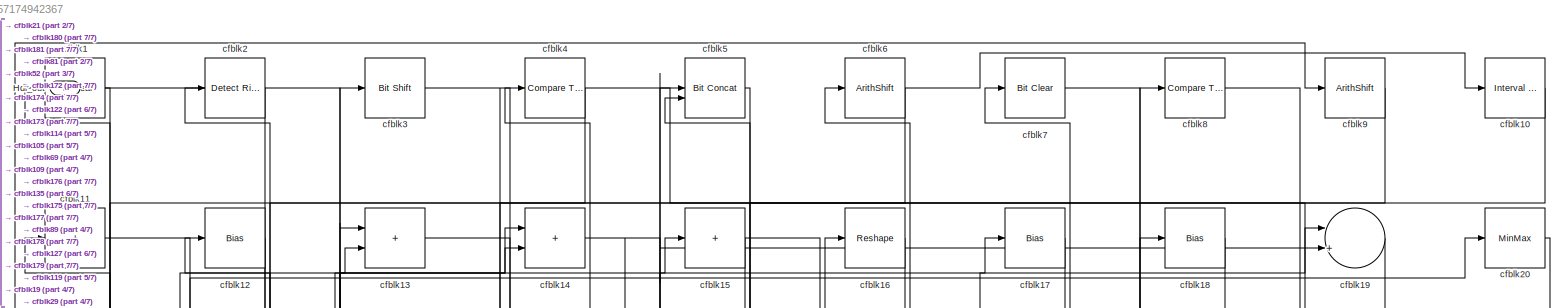
[diagram: root canvas - part 1/7, full width, top band]
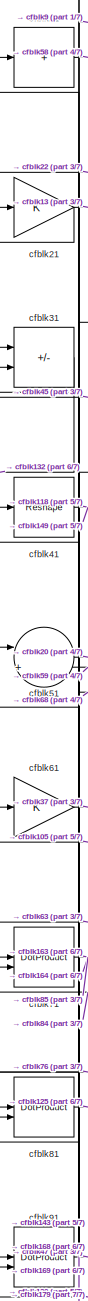
[diagram: root canvas - part 2/7, top left region]
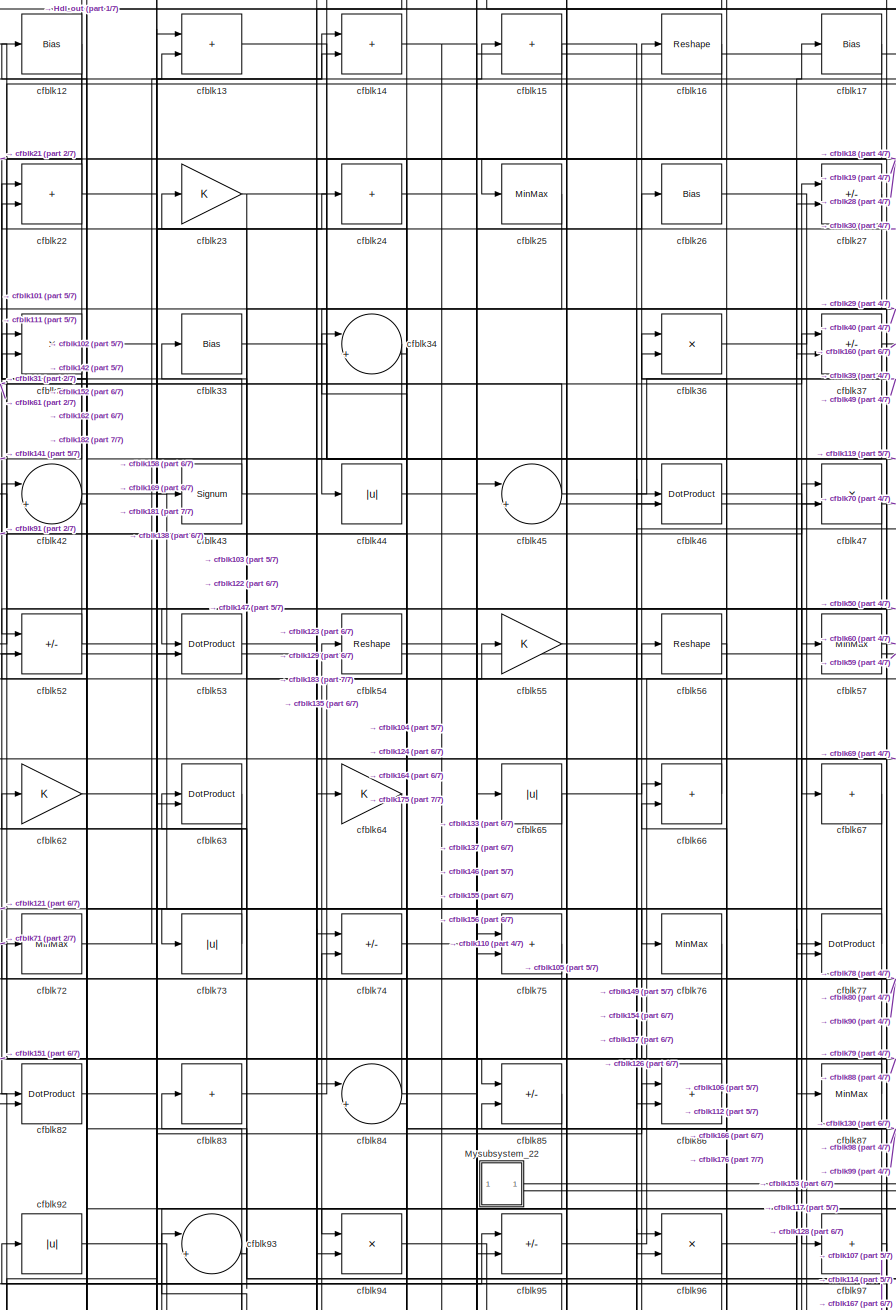
[diagram: root canvas - part 3/7, top center region]
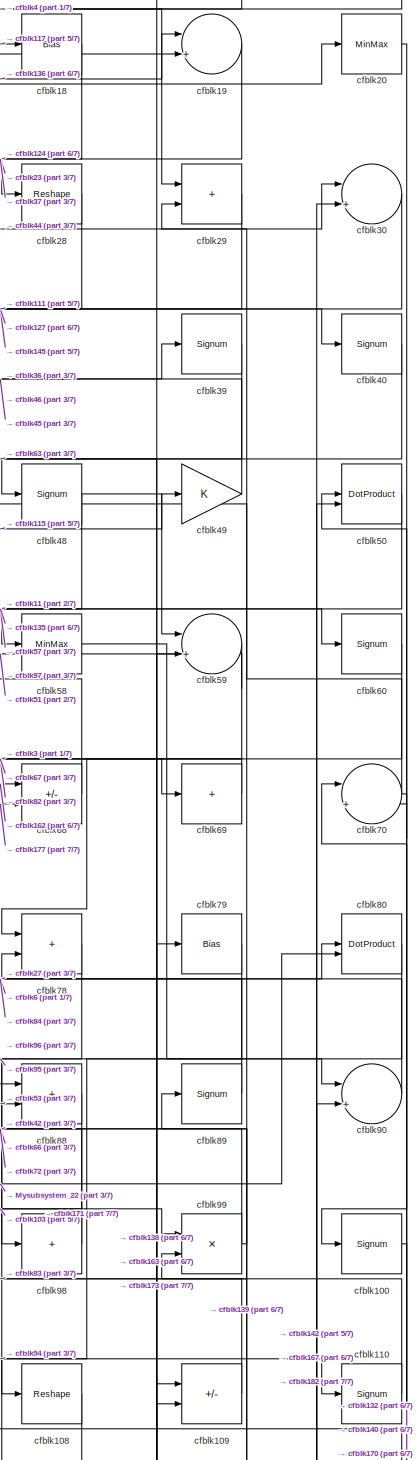
[diagram: root canvas - part 4/7, top right region]
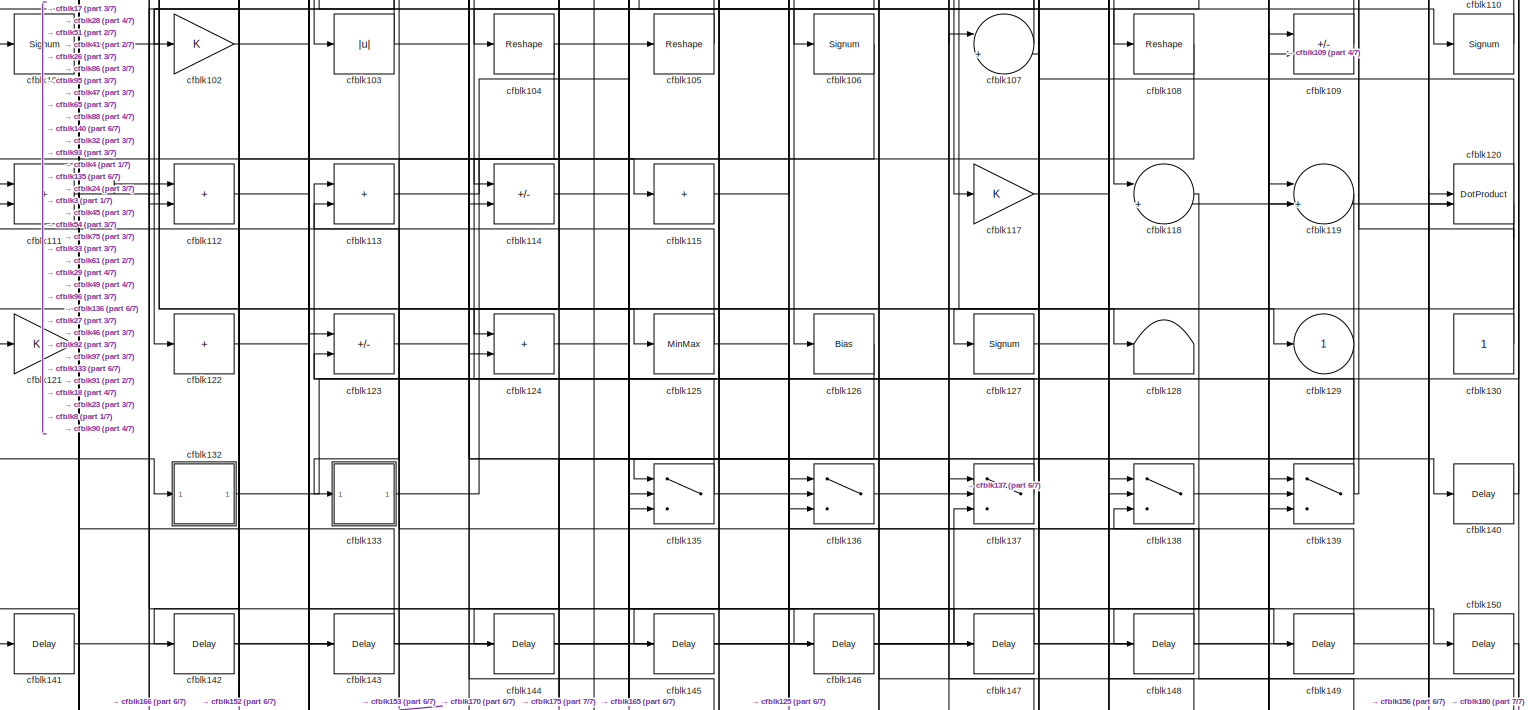
[diagram: root canvas - part 5/7, full width, middle band]
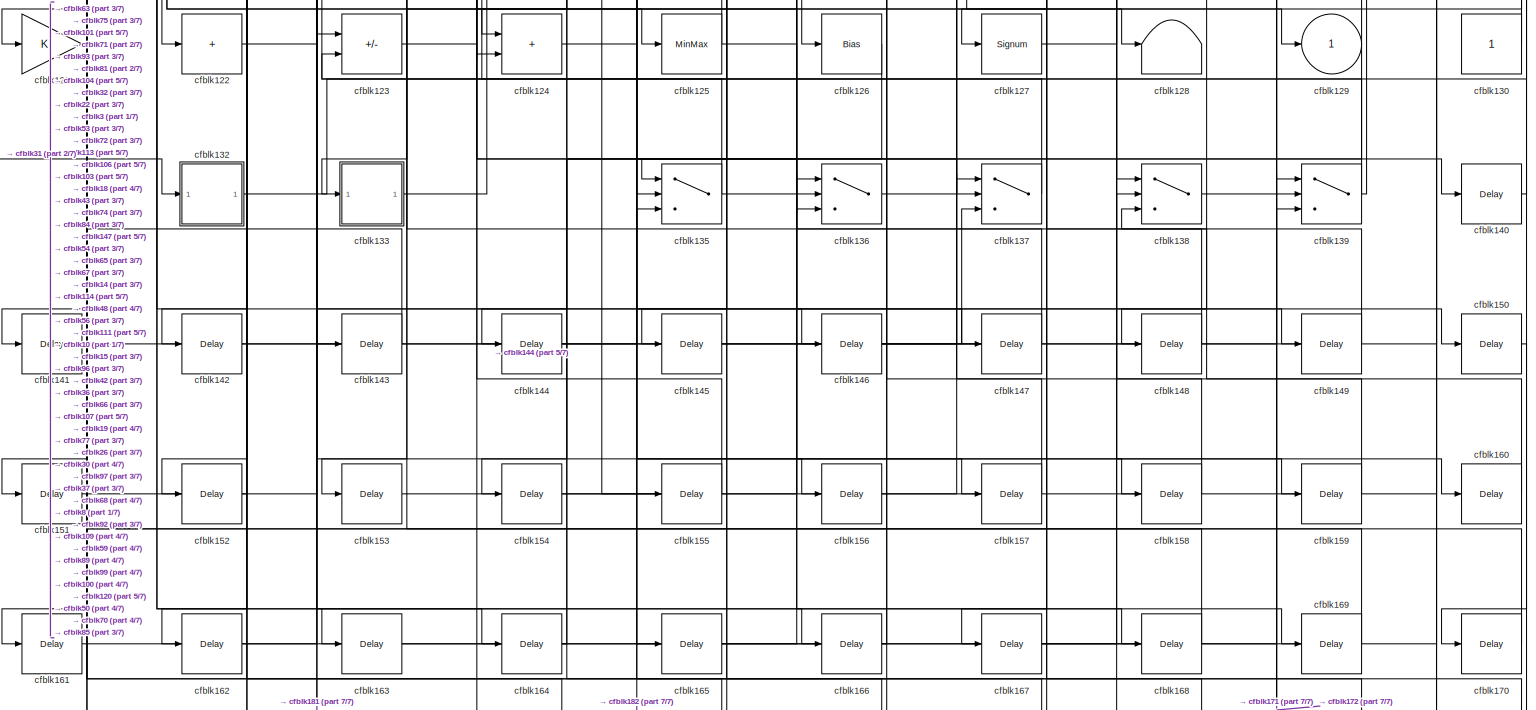
[diagram: root canvas - part 6/7, full width, bottom band]
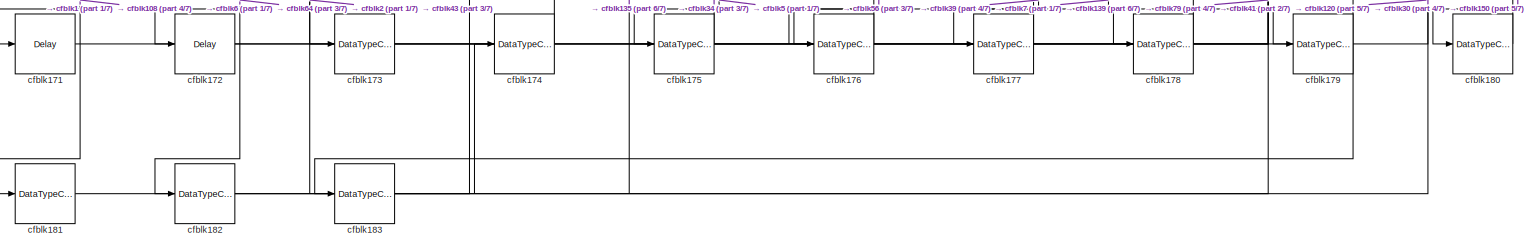
[diagram: root canvas - part 7/7, full width, bottom band]
MODEL slx_257174942367
KIND model
CONFIG AbsTol = auto
CONFIG EnableMultiTasking = off
CONFIG FixedStep = auto
CONFIG MaxStep = auto
CONFIG MinStep = auto
CONFIG RelTol = 1e-3
CONFIG SampleTimeConstraint = Unconstrained
CONFIG SolverName = VariableStepAuto
CONFIG StartTime = 0.0
CONFIG StopTime = 10.0
BLOCK [Outport] Hdl_out
  OutDataTypeStr = uint8
  Port = 2
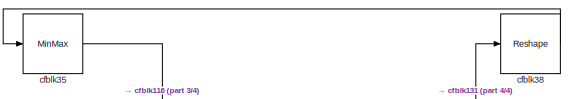
[diagram: Mysubsystem_22 - part 1/4, top center region]
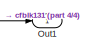
[diagram: Mysubsystem_22 - part 2/4, middle right region]
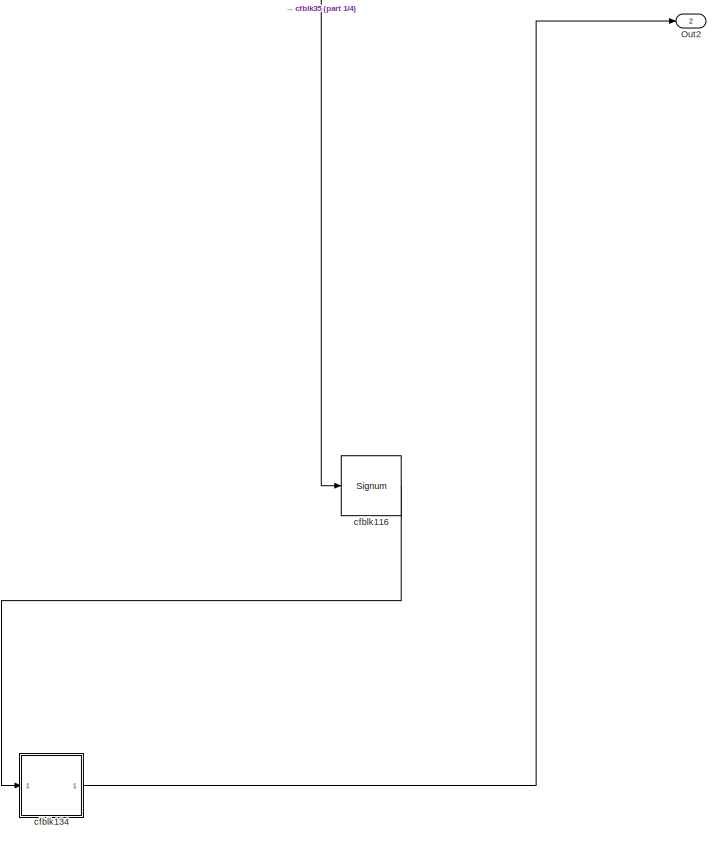
[diagram: Mysubsystem_22 - part 3/4, bottom center region]
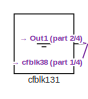
[diagram: Mysubsystem_22 - part 4/4, bottom left region]
BLOCK [SubSystem] Mysubsystem_22
  RTWFcnName = Mysubsystem_22
  RTWFcnNameOpts = User specified
  RTWFileNameOpts = Use function name
  RTWSystemCode = Reusable function
  TreatAsAtomicUnit = on
BLOCK [Outport] Mysubsystem_22/Out1
BLOCK [Outport] Mysubsystem_22/Out2
  Port = 2
BLOCK [Signum] Mysubsystem_22/cfblk116
BLOCK [Ground] Mysubsystem_22/cfblk131
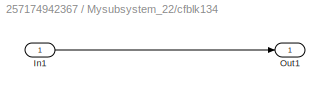
BLOCK [SubSystem] Mysubsystem_22/cfblk134
  LibrarySourceBlock = hdlsllib/Ports &\nSubsystems/Subsystem
BLOCK [Inport] Mysubsystem_22/cfblk134/In1
BLOCK [Outport] Mysubsystem_22/cfblk134/Out1
BLOCK [MinMax] Mysubsystem_22/cfblk35
BLOCK [Reshape] Mysubsystem_22/cfblk38
BLOCK [Reference] cfblk1  REF=simulink/Logic and Bit
Operations/Bit Clear
  LibrarySourceBlock = hdlsllib/Logic and Bit\nOperations/Bit Clear
  SourceBlock = simulink/Logic and Bit\nOperations/Bit Clear
  SourceType = Bit Clear
BLOCK [Reference] cfblk10  REF=hdlsllib/Logic and Bit
Operations/Interval Test
  SourceBlock = hdlsllib/Logic and Bit\nOperations/Interval Test
  SourceType = Interval Test
BLOCK [Signum] cfblk100
BLOCK [Signum] cfblk101
BLOCK [Gain] cfblk102
  OutDataTypeStr = uint8
BLOCK [Abs] cfblk103
  OutDataTypeStr = uint8
  SaturateOnIntegerOverflow = off
BLOCK [Reshape] cfblk104
BLOCK [Reshape] cfblk105
BLOCK [Signum] cfblk106
BLOCK [Sum] cfblk107
  Inputs = |++
  OutDataTypeStr = uint8
BLOCK [Reshape] cfblk108
BLOCK [Sum] cfblk109
  IconShape = rectangular
  Inputs = +-
  OutDataTypeStr = uint8
BLOCK [Sum] cfblk11
  IconShape = rectangular
  Inputs = +
  OutDataTypeStr = uint8
BLOCK [Signum] cfblk110
BLOCK [Sum] cfblk111
  IconShape = rectangular
  OutDataTypeStr = uint8
BLOCK [Sum] cfblk112
  IconShape = rectangular
  OutDataTypeStr = uint8
BLOCK [Sum] cfblk113
  IconShape = rectangular
  OutDataTypeStr = uint8
BLOCK [Sum] cfblk114
  IconShape = rectangular
  Inputs = +-
  OutDataTypeStr = uint8
BLOCK [Sum] cfblk115
  IconShape = rectangular
  Inputs = +
  OutDataTypeStr = uint8
BLOCK [Gain] cfblk117
  OutDataTypeStr = uint8
BLOCK [Sum] cfblk118
  Inputs = |++
  OutDataTypeStr = uint8
BLOCK [Sum] cfblk119
  Inputs = |++
  OutDataTypeStr = uint8
BLOCK [Bias] cfblk12
  Bias = 0.0
  SaturateOnIntegerOverflow = off
BLOCK [DotProduct] cfblk120
  OutDataTypeStr = uint8
BLOCK [Gain] cfblk121
  OutDataTypeStr = uint8
BLOCK [Sum] cfblk122
  IconShape = rectangular
  Inputs = +
  OutDataTypeStr = uint8
BLOCK [Sum] cfblk123
  IconShape = rectangular
  Inputs = +-
  OutDataTypeStr = uint8
BLOCK [Sum] cfblk124
  IconShape = rectangular
  OutDataTypeStr = uint8
BLOCK [MinMax] cfblk125
  OutDataTypeStr = uint8
BLOCK [Bias] cfblk126
  Bias = 0.0
  SaturateOnIntegerOverflow = off
BLOCK [Signum] cfblk127
BLOCK [Terminator] cfblk128
BLOCK [Outport] cfblk129
  OutDataTypeStr = uint8
  VectorParamsAs1DForOutWhenUnconnected = off
BLOCK [Sum] cfblk13
  IconShape = rectangular
  OutDataTypeStr = uint8
BLOCK [Constant] cfblk130
  OutDataTypeStr = uint8
  SampleTime = -1
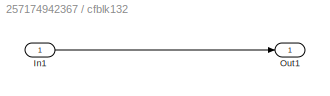
BLOCK [SubSystem] cfblk132
  LibrarySourceBlock = hdlsllib/Ports &\nSubsystems/Subsystem
BLOCK [Inport] cfblk132/In1
BLOCK [Outport] cfblk132/Out1
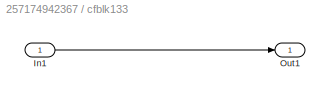
BLOCK [SubSystem] cfblk133
  LibrarySourceBlock = hdlsllib/Ports &\nSubsystems/Subsystem
BLOCK [Inport] cfblk133/In1
BLOCK [Outport] cfblk133/Out1
BLOCK [Switch] cfblk135
  InputSameDT = off
  OutDataTypeStr = uint8
  SaturateOnIntegerOverflow = off
BLOCK [Switch] cfblk136
  InputSameDT = off
  OutDataTypeStr = uint8
  SaturateOnIntegerOverflow = off
BLOCK [Switch] cfblk137
  InputSameDT = off
  OutDataTypeStr = uint8
  SaturateOnIntegerOverflow = off
BLOCK [Switch] cfblk138
  InputSameDT = off
  OutDataTypeStr = uint8
  SaturateOnIntegerOverflow = off
BLOCK [Switch] cfblk139
  InputSameDT = off
  OutDataTypeStr = uint8
  SaturateOnIntegerOverflow = off
BLOCK [Sum] cfblk14
  IconShape = rectangular
  OutDataTypeStr = uint8
BLOCK [Delay] cfblk140
  InputPortMap = u0
  SampleTime = 1
BLOCK [Delay] cfblk141
  InputPortMap = u0
  SampleTime = 1
BLOCK [Delay] cfblk142
  InputPortMap = u0
  SampleTime = 1
BLOCK [Delay] cfblk143
  InputPortMap = u0
  SampleTime = 1
BLOCK [Delay] cfblk144
  InputPortMap = u0
  SampleTime = 1
BLOCK [Delay] cfblk145
  InputPortMap = u0
  SampleTime = 1
BLOCK [Delay] cfblk146
  InputPortMap = u0
  SampleTime = 1
BLOCK [Delay] cfblk147
  InputPortMap = u0
  SampleTime = 1
BLOCK [Delay] cfblk148
  InputPortMap = u0
  SampleTime = 1
BLOCK [Delay] cfblk149
  InputPortMap = u0
  SampleTime = 1
BLOCK [Sum] cfblk15
  IconShape = rectangular
  Inputs = +
  OutDataTypeStr = uint8
BLOCK [Delay] cfblk150
  InputPortMap = u0
  SampleTime = 1
BLOCK [Delay] cfblk151
  InputPortMap = u0
  SampleTime = 1
BLOCK [Delay] cfblk152
  InputPortMap = u0
  SampleTime = 1
BLOCK [Delay] cfblk153
  InputPortMap = u0
  SampleTime = 1
BLOCK [Delay] cfblk154
  InputPortMap = u0
  SampleTime = 1
BLOCK [Delay] cfblk155
  InputPortMap = u0
  SampleTime = 1
BLOCK [Delay] cfblk156
  InputPortMap = u0
  SampleTime = 1
BLOCK [Delay] cfblk157
  InputPortMap = u0
  SampleTime = 1
BLOCK [Delay] cfblk158
  InputPortMap = u0
  SampleTime = 1
BLOCK [Delay] cfblk159
  InputPortMap = u0
  SampleTime = 1
BLOCK [Reshape] cfblk16
BLOCK [Delay] cfblk160
  InputPortMap = u0
  SampleTime = 1
BLOCK [Delay] cfblk161
  InputPortMap = u0
  SampleTime = 1
BLOCK [Delay] cfblk162
  InputPortMap = u0
  SampleTime = 1
BLOCK [Delay] cfblk163
  InputPortMap = u0
  SampleTime = 1
BLOCK [Delay] cfblk164
  InputPortMap = u0
  SampleTime = 1
BLOCK [Delay] cfblk165
  InputPortMap = u0
  SampleTime = 1
BLOCK [Delay] cfblk166
  InputPortMap = u0
  SampleTime = 1
BLOCK [Delay] cfblk167
  InputPortMap = u0
  SampleTime = 1
BLOCK [Delay] cfblk168
  InputPortMap = u0
  SampleTime = 1
BLOCK [Delay] cfblk169
  InputPortMap = u0
  SampleTime = 1
BLOCK [Bias] cfblk17
  Bias = 0.0
  SaturateOnIntegerOverflow = off
BLOCK [Delay] cfblk170
  InputPortMap = u0
  SampleTime = 1
BLOCK [Delay] cfblk171
  InputPortMap = u0
  SampleTime = 1
BLOCK [Delay] cfblk172
  InputPortMap = u0
  SampleTime = 1
BLOCK [DataTypeConversion] cfblk173
  OutDataTypeStr = uint8
  RndMeth = Floor
  SaturateOnIntegerOverflow = off
BLOCK [DataTypeConversion] cfblk174
  OutDataTypeStr = uint8
  RndMeth = Floor
  SaturateOnIntegerOverflow = off
BLOCK [DataTypeConversion] cfblk175
  OutDataTypeStr = uint8
  RndMeth = Floor
  SaturateOnIntegerOverflow = off
BLOCK [DataTypeConversion] cfblk176
  OutDataTypeStr = uint8
  RndMeth = Floor
  SaturateOnIntegerOverflow = off
BLOCK [DataTypeConversion] cfblk177
  OutDataTypeStr = uint8
  RndMeth = Floor
  SaturateOnIntegerOverflow = off
BLOCK [DataTypeConversion] cfblk178
  OutDataTypeStr = uint8
  RndMeth = Floor
  SaturateOnIntegerOverflow = off
BLOCK [DataTypeConversion] cfblk179
  OutDataTypeStr = uint8
  RndMeth = Floor
  SaturateOnIntegerOverflow = off
BLOCK [Bias] cfblk18
  Bias = 0.0
  SaturateOnIntegerOverflow = off
BLOCK [DataTypeConversion] cfblk180
  OutDataTypeStr = uint8
  RndMeth = Floor
  SaturateOnIntegerOverflow = off
BLOCK [DataTypeConversion] cfblk181
  OutDataTypeStr = uint8
  RndMeth = Floor
  SaturateOnIntegerOverflow = off
BLOCK [DataTypeConversion] cfblk182
  OutDataTypeStr = uint8
  RndMeth = Floor
  SaturateOnIntegerOverflow = off
BLOCK [DataTypeConversion] cfblk183
  OutDataTypeStr = uint8
  RndMeth = Floor
  SaturateOnIntegerOverflow = off
BLOCK [Sum] cfblk19
  Inputs = |++
  OutDataTypeStr = uint8
BLOCK [Reference] cfblk2  REF=hdlsllib/Logic and Bit
Operations/Detect Rise
Nonnegative
  SourceBlock = hdlsllib/Logic and Bit\nOperations/Detect Rise\nNonnegative
  SourceType = Detect Rise Nonnegative
BLOCK [MinMax] cfblk20
  OutDataTypeStr = uint8
BLOCK [Gain] cfblk21
  OutDataTypeStr = uint8
BLOCK [Sum] cfblk22
  IconShape = rectangular
  OutDataTypeStr = uint8
BLOCK [Gain] cfblk23
  OutDataTypeStr = uint8
BLOCK [Sum] cfblk24
  IconShape = rectangular
  Inputs = +
  OutDataTypeStr = uint8
BLOCK [MinMax] cfblk25
  OutDataTypeStr = uint8
BLOCK [Bias] cfblk26
  Bias = 0.0
  SaturateOnIntegerOverflow = off
BLOCK [Sum] cfblk27
  IconShape = rectangular
  Inputs = +-
  OutDataTypeStr = uint8
BLOCK [Reshape] cfblk28
BLOCK [Sum] cfblk29
  IconShape = rectangular
  OutDataTypeStr = uint8
BLOCK [Reference] cfblk3  REF=hdlsllib/Logic and Bit
Operations/Bit Shift
  SourceBlock = hdlsllib/Logic and Bit\nOperations/Bit Shift
  SourceType = Bit Shift
BLOCK [Sum] cfblk30
  Inputs = |++
  OutDataTypeStr = uint8
BLOCK [Sum] cfblk31
  IconShape = rectangular
  Inputs = +-
  OutDataTypeStr = uint8
BLOCK [Product] cfblk32
  Inputs = */
  OutDataTypeStr = uint8
  RndMeth = Zero
  SaturateOnIntegerOverflow = on
BLOCK [Bias] cfblk33
  Bias = 0.0
  SaturateOnIntegerOverflow = off
BLOCK [Sum] cfblk34
  Inputs = |++
  OutDataTypeStr = uint8
BLOCK [Product] cfblk36
  Inputs = */
  OutDataTypeStr = uint8
  RndMeth = Zero
  SaturateOnIntegerOverflow = on
BLOCK [Sum] cfblk37
  IconShape = rectangular
  Inputs = +-
  OutDataTypeStr = uint8
BLOCK [Signum] cfblk39
BLOCK [Reference] cfblk4  REF=hdlsllib/Logic and Bit
Operations/Compare
To Zero
  SourceBlock = hdlsllib/Logic and Bit\nOperations/Compare\nTo Zero
  SourceType = Compare To Zero
BLOCK [Signum] cfblk40
BLOCK [Reshape] cfblk41
BLOCK [Sum] cfblk42
  Inputs = |++
  OutDataTypeStr = uint8
BLOCK [Signum] cfblk43
BLOCK [Abs] cfblk44
  OutDataTypeStr = uint8
  SaturateOnIntegerOverflow = off
BLOCK [Sum] cfblk45
  Inputs = |++
  OutDataTypeStr = uint8
BLOCK [DotProduct] cfblk46
  OutDataTypeStr = uint8
BLOCK [Product] cfblk47
  Inputs = */
  OutDataTypeStr = uint8
  RndMeth = Zero
  SaturateOnIntegerOverflow = on
BLOCK [Signum] cfblk48
BLOCK [Gain] cfblk49
  OutDataTypeStr = uint8
BLOCK [Reference] cfblk5  REF=hdlsllib/Logic and Bit
Operations/Bit Concat
  SourceBlock = hdlsllib/Logic and Bit\nOperations/Bit Concat
  SourceType = Bit Concat
BLOCK [DotProduct] cfblk50
  OutDataTypeStr = uint8
BLOCK [Sum] cfblk51
  Inputs = |++
  OutDataTypeStr = uint8
BLOCK [Sum] cfblk52
  IconShape = rectangular
  Inputs = +-
  OutDataTypeStr = uint8
BLOCK [DotProduct] cfblk53
  OutDataTypeStr = uint8
BLOCK [Reshape] cfblk54
BLOCK [Gain] cfblk55
  OutDataTypeStr = uint8
BLOCK [Reshape] cfblk56
BLOCK [MinMax] cfblk57
  OutDataTypeStr = uint8
BLOCK [MinMax] cfblk58
  OutDataTypeStr = uint8
BLOCK [Sum] cfblk59
  Inputs = |++
  OutDataTypeStr = uint8
BLOCK [ArithShift] cfblk6
  BitShiftNumber = 8
  InputPortMap = u0
BLOCK [Signum] cfblk60
BLOCK [Gain] cfblk61
  OutDataTypeStr = uint8
BLOCK [Gain] cfblk62
  OutDataTypeStr = uint8
BLOCK [DotProduct] cfblk63
  OutDataTypeStr = uint8
BLOCK [Gain] cfblk64
  OutDataTypeStr = uint8
BLOCK [Abs] cfblk65
  OutDataTypeStr = uint8
  SaturateOnIntegerOverflow = off
BLOCK [Sum] cfblk66
  IconShape = rectangular
  OutDataTypeStr = uint8
BLOCK [Sum] cfblk67
  IconShape = rectangular
  Inputs = +
  OutDataTypeStr = uint8
BLOCK [Sum] cfblk68
  IconShape = rectangular
  Inputs = +-
  OutDataTypeStr = uint8
BLOCK [Sum] cfblk69
  IconShape = rectangular
  Inputs = +
  OutDataTypeStr = uint8
BLOCK [Reference] cfblk7  REF=simulink/Logic and Bit
Operations/Bit Clear
  LibrarySourceBlock = hdlsllib/Logic and Bit\nOperations/Bit Clear
  SourceBlock = simulink/Logic and Bit\nOperations/Bit Clear
  SourceType = Bit Clear
BLOCK [Sum] cfblk70
  Inputs = |++
  OutDataTypeStr = uint8
BLOCK [DotProduct] cfblk71
  OutDataTypeStr = uint8
BLOCK [MinMax] cfblk72
  OutDataTypeStr = uint8
BLOCK [Abs] cfblk73
  OutDataTypeStr = uint8
  SaturateOnIntegerOverflow = off
BLOCK [Sum] cfblk74
  IconShape = rectangular
  Inputs = +-
  OutDataTypeStr = uint8
BLOCK [Sum] cfblk75
  IconShape = rectangular
  OutDataTypeStr = uint8
BLOCK [MinMax] cfblk76
  OutDataTypeStr = uint8
BLOCK [DotProduct] cfblk77
  OutDataTypeStr = uint8
BLOCK [Sum] cfblk78
  IconShape = rectangular
  OutDataTypeStr = uint8
BLOCK [Bias] cfblk79
  Bias = 0.0
  SaturateOnIntegerOverflow = off
BLOCK [Reference] cfblk8  REF=hdlsllib/Logic and Bit
Operations/Compare
To Constant
  SourceBlock = hdlsllib/Logic and Bit\nOperations/Compare\nTo Constant
  SourceType = Compare To Constant
BLOCK [DotProduct] cfblk80
  OutDataTypeStr = uint8
BLOCK [DotProduct] cfblk81
  OutDataTypeStr = uint8
BLOCK [DotProduct] cfblk82
  OutDataTypeStr = uint8
BLOCK [Sum] cfblk83
  IconShape = rectangular
  Inputs = +
  OutDataTypeStr = uint8
BLOCK [Sum] cfblk84
  Inputs = |++
  OutDataTypeStr = uint8
BLOCK [Sum] cfblk85
  IconShape = rectangular
  Inputs = +-
  OutDataTypeStr = uint8
BLOCK [Sum] cfblk86
  IconShape = rectangular
  OutDataTypeStr = uint8
BLOCK [MinMax] cfblk87
  OutDataTypeStr = uint8
BLOCK [Sum] cfblk88
  IconShape = rectangular
  OutDataTypeStr = uint8
BLOCK [Signum] cfblk89
BLOCK [ArithShift] cfblk9
  BitShiftNumber = 8
  InputPortMap = u0
BLOCK [Sum] cfblk90
  Inputs = |++
  OutDataTypeStr = uint8
BLOCK [DotProduct] cfblk91
  OutDataTypeStr = uint8
BLOCK [Abs] cfblk92
  OutDataTypeStr = uint8
  SaturateOnIntegerOverflow = off
BLOCK [Sum] cfblk93
  Inputs = |++
  OutDataTypeStr = uint8
BLOCK [Product] cfblk94
  Inputs = */
  OutDataTypeStr = uint8
  RndMeth = Zero
  SaturateOnIntegerOverflow = on
BLOCK [Sum] cfblk95
  IconShape = rectangular
  Inputs = +-
  OutDataTypeStr = uint8
BLOCK [Product] cfblk96
  Inputs = */
  OutDataTypeStr = uint8
  RndMeth = Zero
  SaturateOnIntegerOverflow = on
BLOCK [Sum] cfblk97
  IconShape = rectangular
  Inputs = +
  OutDataTypeStr = uint8
BLOCK [Sum] cfblk98
  IconShape = rectangular
  Inputs = +
  OutDataTypeStr = uint8
BLOCK [Product] cfblk99
  Inputs = */
  OutDataTypeStr = uint8
  RndMeth = Zero
  SaturateOnIntegerOverflow = on
LINE Mysubsystem_22/cfblk116:1 -> Mysubsystem_22/cfblk134:1
NET Mysubsystem_22/cfblk131:1 -> Mysubsystem_22/Out1:1, Mysubsystem_22/cfblk38:1
LINE Mysubsystem_22/cfblk134/In1:1 -> Mysubsystem_22/cfblk134/Out1:1
LINE Mysubsystem_22/cfblk134:1 -> Mysubsystem_22/Out2:1
LINE Mysubsystem_22/cfblk35:1 -> Mysubsystem_22/cfblk116:1
LINE Mysubsystem_22/cfblk38:1 -> Mysubsystem_22/cfblk35:1
LINE Mysubsystem_22:1 -> cfblk80:2
LINE Mysubsystem_22:2 -> cfblk88:1
LINE cfblk100:1 -> cfblk170:1
NET cfblk101:1 -> cfblk136:2, cfblk166:1, cfblk26:1, cfblk86:1
NET cfblk102:1 -> cfblk150:1, cfblk24:1
NET cfblk103:1 -> cfblk140:1, cfblk32:1
NET cfblk104:1 -> cfblk152:1, cfblk75:1
NET cfblk105:1 -> cfblk33:1, cfblk61:1
LINE cfblk106:1 -> cfblk153:1
LINE cfblk107:1 -> cfblk92:1
LINE cfblk108:1 -> cfblk171:1
LINE cfblk109:1 -> cfblk4:1
LINE cfblk10:1 -> cfblk135:1
LINE cfblk110:1 -> cfblk83:1
NET cfblk111:1 -> cfblk112:1, cfblk95:1
LINE cfblk112:1 -> cfblk143:1
LINE cfblk113:1 -> cfblk115:1
LINE cfblk114:1 -> cfblk165:1
LINE cfblk115:1 -> cfblk49:1
LINE cfblk117:1 -> cfblk18:1
LINE cfblk118:1 -> cfblk148:1
LINE cfblk119:1 -> cfblk144:1
LINE cfblk11:1 -> cfblk58:1
NET cfblk120:1 -> cfblk118:2, cfblk133:1, cfblk91:1
LINE cfblk121:1 -> cfblk161:1
LINE cfblk122:1 -> cfblk3:1
NET cfblk123:1 -> cfblk136:3, cfblk84:1
NET cfblk124:1 -> cfblk159:1, cfblk56:1
NET cfblk125:1 -> cfblk111:2, cfblk168:1
LINE cfblk126:1 -> cfblk154:1
LINE cfblk127:1 -> cfblk8:1
LINE cfblk12:1 -> cfblk82:1
LINE cfblk130:1 -> cfblk85:2
LINE cfblk132/In1:1 -> cfblk132/Out1:1
LINE cfblk132:1 -> cfblk50:1
LINE cfblk133/In1:1 -> cfblk133/Out1:1
LINE cfblk133:1 -> cfblk65:1
NET cfblk135:1 -> cfblk147:1, cfblk54:1
NET cfblk136:1 -> cfblk107:1, cfblk19:1
LINE cfblk137:1 -> cfblk113:1
LINE cfblk138:1 -> cfblk109:2
NET cfblk139:1 -> cfblk123:2, cfblk89:1, cfblk99:2
LINE cfblk13:1 -> cfblk75:2
LINE cfblk140:1 -> cfblk70:1
LINE cfblk141:1 -> cfblk45:1
LINE cfblk142:1 -> cfblk90:2
LINE cfblk143:1 -> cfblk51:1
LINE cfblk144:1 -> cfblk137:3
LINE cfblk145:1 -> cfblk109:1
LINE cfblk146:1 -> cfblk27:2
LINE cfblk147:1 -> cfblk93:1
LINE cfblk148:1 -> cfblk107:2
LINE cfblk149:1 -> cfblk46:1
NET cfblk14:1 -> cfblk155:1, cfblk156:1
LINE cfblk150:1 -> cfblk180:1
LINE cfblk151:1 -> cfblk53:2
LINE cfblk152:1 -> cfblk32:2
LINE cfblk153:1 -> cfblk77:1
LINE cfblk154:1 -> cfblk96:1
LINE cfblk155:1 -> cfblk74:1
LINE cfblk156:1 -> cfblk120:1
LINE cfblk157:1 -> cfblk137:1
LINE cfblk158:1 -> cfblk138:2
LINE cfblk159:1 -> cfblk138:3
NET cfblk15:1 -> cfblk157:1, cfblk52:1
LINE cfblk160:1 -> cfblk36:2
LINE cfblk161:1 -> cfblk123:1
LINE cfblk162:1 -> cfblk68:1
LINE cfblk163:1 -> cfblk59:2
LINE cfblk164:1 -> cfblk84:2
LINE cfblk165:1 -> cfblk136:1
LINE cfblk166:1 -> cfblk66:2
LINE cfblk167:1 -> cfblk50:2
LINE cfblk168:1 -> cfblk81:2
LINE cfblk169:1 -> cfblk31:2
LINE cfblk16:1 -> cfblk25:1
LINE cfblk170:1 -> cfblk113:2
LINE cfblk171:1 -> cfblk139:2
LINE cfblk172:1 -> cfblk139:1
LINE cfblk173:1 -> cfblk79:1
LINE cfblk174:1 -> cfblk2:1
NET cfblk175:1 -> cfblk120:2, cfblk178:1, cfblk34:1
LINE cfblk176:1 -> cfblk5:1
LINE cfblk177:1 -> cfblk5:2
LINE cfblk178:1 -> cfblk7:1
NET cfblk179:1 -> cfblk183:1, cfblk41:1
NET cfblk17:1 -> cfblk101:1, cfblk34:2
LINE cfblk180:1 -> cfblk1:1
NET cfblk181:1 -> cfblk139:3, cfblk43:1
NET cfblk182:1 -> cfblk135:3, cfblk174:1, cfblk30:2
LINE cfblk183:1 -> cfblk64:1
NET cfblk18:1 -> cfblk124:2, cfblk37:2
LINE cfblk19:1 -> cfblk94:1
LINE cfblk1:1 -> cfblk181:1
LINE cfblk20:1 -> cfblk70:2
NET cfblk21:1 -> cfblk13:2, cfblk9:1
NET cfblk22:1 -> cfblk169:1, cfblk21:1
NET cfblk23:1 -> cfblk119:2, cfblk28:1, cfblk93:2
NET cfblk24:1 -> cfblk104:1, cfblk96:2
LINE cfblk25:1 -> cfblk44:1
LINE cfblk26:1 -> cfblk128:1
LINE cfblk27:1 -> cfblk53:1
LINE cfblk28:1 -> cfblk111:1
NET cfblk29:1 -> cfblk145:1, cfblk46:2
LINE cfblk2:1 -> cfblk173:1
LINE cfblk30:1 -> cfblk127:1
LINE cfblk31:1 -> cfblk132:1
NET cfblk32:1 -> cfblk141:1, cfblk77:2
LINE cfblk33:1 -> cfblk87:1
LINE cfblk34:1 -> cfblk94:2
LINE cfblk36:1 -> cfblk40:1
NET cfblk37:1 -> cfblk160:1, cfblk42:2, cfblk86:2
NET cfblk39:1 -> cfblk177:1, cfblk68:2
NET cfblk3:1 -> cfblk105:1, cfblk69:1
NET cfblk40:1 -> cfblk48:1, cfblk63:2
NET cfblk41:1 -> cfblk118:1, cfblk149:1
NET cfblk42:1 -> cfblk126:1, cfblk14:1
NET cfblk43:1 -> cfblk129:1, cfblk22:1
LINE cfblk44:1 -> cfblk30:1
NET cfblk45:1 -> cfblk31:1, cfblk39:1
LINE cfblk46:1 -> cfblk117:1
LINE cfblk47:1 -> cfblk142:1
NET cfblk48:1 -> cfblk135:2, cfblk59:1
LINE cfblk49:1 -> cfblk36:1
NET cfblk4:1 -> cfblk114:2, cfblk19:2, cfblk29:1
LINE cfblk50:1 -> cfblk97:1
LINE cfblk51:1 -> cfblk20:1
NET cfblk52:1 -> Hdl_out:1, cfblk13:1
LINE cfblk53:1 -> cfblk88:2
LINE cfblk54:1 -> cfblk146:1
LINE cfblk55:1 -> cfblk57:1
LINE cfblk56:1 -> cfblk176:1
LINE cfblk57:1 -> cfblk60:1
LINE cfblk58:1 -> cfblk90:1
NET cfblk59:1 -> cfblk51:2, cfblk82:2
LINE cfblk5:1 -> cfblk175:1
LINE cfblk60:1 -> cfblk78:1
LINE cfblk61:1 -> cfblk37:1
NET cfblk62:1 -> cfblk12:1, cfblk14:2
NET cfblk63:1 -> cfblk121:1, cfblk71:2
LINE cfblk64:1 -> cfblk182:1
NET cfblk65:1 -> cfblk102:1, cfblk16:1
LINE cfblk66:1 -> cfblk23:1
NET cfblk67:1 -> cfblk124:1, cfblk76:1
LINE cfblk68:1 -> cfblk11:1
LINE cfblk69:1 -> cfblk67:1
NET cfblk6:1 -> cfblk10:1, cfblk172:1
NET cfblk70:1 -> cfblk100:1, cfblk45:2
NET cfblk71:1 -> cfblk163:1, cfblk164:1, cfblk85:1
NET cfblk72:1 -> cfblk158:1, cfblk15:1
LINE cfblk73:1 -> cfblk62:1
LINE cfblk74:1 -> cfblk17:1
LINE cfblk75:1 -> cfblk151:1
LINE cfblk76:1 -> cfblk91:2
LINE cfblk77:1 -> cfblk73:1
LINE cfblk78:1 -> cfblk98:1
LINE cfblk79:1 -> cfblk95:2
LINE cfblk7:1 -> cfblk179:1
LINE cfblk80:1 -> cfblk108:1
LINE cfblk81:1 -> cfblk125:1
LINE cfblk82:1 -> cfblk99:1
LINE cfblk83:1 -> cfblk55:1
NET cfblk84:1 -> cfblk137:2, cfblk71:1, cfblk80:1
LINE cfblk85:1 -> cfblk162:1
LINE cfblk86:1 -> cfblk63:1
LINE cfblk87:1 -> cfblk74:2
LINE cfblk88:1 -> cfblk103:1
LINE cfblk89:1 -> cfblk6:1
LINE cfblk8:1 -> cfblk119:1
LINE cfblk90:1 -> cfblk27:1
LINE cfblk91:1 -> cfblk47:1
LINE cfblk92:1 -> cfblk138:1
NET cfblk93:1 -> cfblk122:1, cfblk52:2
LINE cfblk94:1 -> cfblk110:1
LINE cfblk95:1 -> cfblk47:2
NET cfblk96:1 -> cfblk106:1, cfblk112:2, cfblk78:2
NET cfblk97:1 -> cfblk114:1, cfblk167:1, cfblk22:2
NET cfblk98:1 -> cfblk42:1, cfblk72:1
NET cfblk99:1 -> cfblk29:2, cfblk66:1
LINE cfblk9:1 -> cfblk81:1
note: NET lines group one-source signal fan-out (src -> all destinations, sorted); 1:1 wires keep LINE
